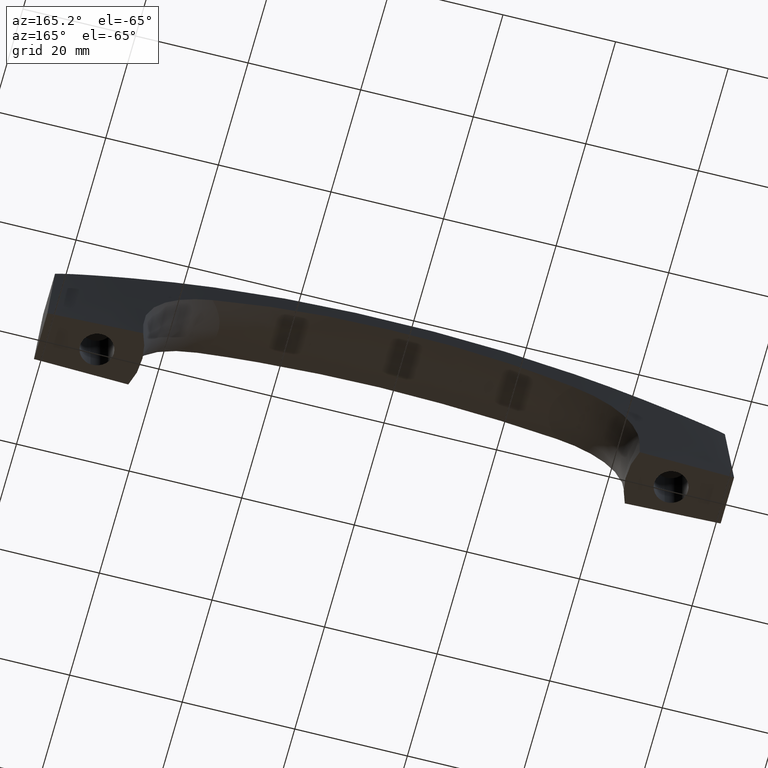
[diagram: clean part render]
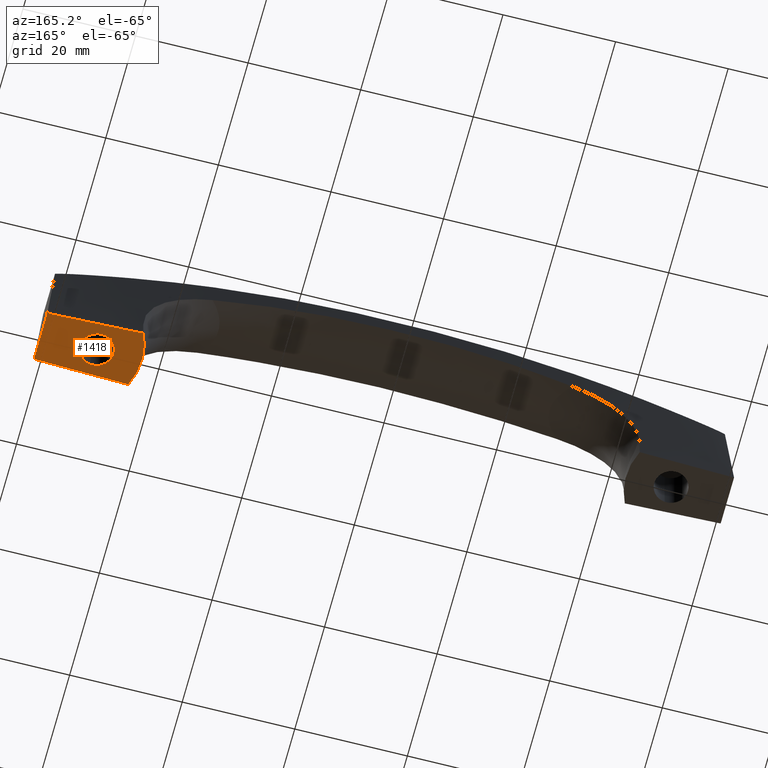
[diagram: same view with one face highlighted and labeled with its STEP entity id]
A machine part, auxiliary view. The second image highlights one B-rep face of the part: STEP entity #1418.
In plain terms, the highlighted face is a freeform B-spline surface patch.
Its self-contained STEP definition (entity closure, byte-faithful):
#271=CARTESIAN_POINT('',(51.354402704031180,-2.979028579083759,2.839428E-017));
#272=VERTEX_POINT('',#271);
#278=CARTESIAN_POINT('',(48.000300000000003,0.0,0.0));
#279=VERTEX_POINT('',#278);
#280=CARTESIAN_POINT('',(51.354402704031180,-2.979028579083760,2.839428E-017));
#281=CARTESIAN_POINT('',(51.177972359017275,-3.000000000000000,0.0));
#282=CARTESIAN_POINT('',(51.000300000000003,-3.0,0.0));
#283=CARTESIAN_POINT('',(48.000299999999982,-3.0,0.0));
#284=CARTESIAN_POINT('',(48.000300000000003,0.0,0.0));
#292=(BOUNDED_CURVE()B_SPLINE_CURVE(2,(#280,#281,#282,#283,#284),.UNSPECIFIED.,.F.,.U.)B_SPLINE_CURVE_WITH_KNOTS((3,2,3),(0.229562473508734,0.250000000000000,0.500000000000000),.UNSPECIFIED.)CURVE()GEOMETRIC_REPRESENTATION_ITEM()RATIONAL_B_SPLINE_CURVE((0.956026754174341,0.976055948325551,1.0,0.707106781186548,1.0))REPRESENTATION_ITEM(''));
#293=EDGE_CURVE('',#272,#279,#292,.T.);
#295=CARTESIAN_POINT('',(50.817154380951891,2.994404395238473,2.775558E-017));
#296=VERTEX_POINT('',#295);
#297=CARTESIAN_POINT('',(48.000300000000003,0.0,0.0));
#298=CARTESIAN_POINT('',(48.000299999999989,2.822118199879488,0.0));
#299=CARTESIAN_POINT('',(50.817154380951891,2.994404395238473,2.775558E-017));
#307=(BOUNDED_CURVE()B_SPLINE_CURVE(2,(#297,#298,#299),.UNSPECIFIED.,.F.,.U.)B_SPLINE_CURVE_WITH_KNOTS((3,3),(0.500000000000000,0.739332962190852),.UNSPECIFIED.)CURVE()GEOMETRIC_REPRESENTATION_ITEM()RATIONAL_B_SPLINE_CURVE((1.0,0.719603993343052,0.976072041563651))REPRESENTATION_ITEM(''));
#308=EDGE_CURVE('',#279,#296,#307,.T.);
#382=CARTESIAN_POINT('',(54.000300000000003,0.0,0.0));
#383=VERTEX_POINT('',#382);
#384=CARTESIAN_POINT('',(50.817154380951891,2.994404395238472,2.775558E-017));
#385=CARTESIAN_POINT('',(50.908641709659442,3.0,0.0));
#386=CARTESIAN_POINT('',(51.000300000000003,3.0,0.0));
#387=CARTESIAN_POINT('',(54.000300000000010,3.0,0.0));
#388=CARTESIAN_POINT('',(54.000300000000003,0.0,0.0));
#396=(BOUNDED_CURVE()B_SPLINE_CURVE(2,(#384,#385,#386,#387,#388),.UNSPECIFIED.,.F.,.U.)B_SPLINE_CURVE_WITH_KNOTS((3,2,3),(0.739332962190852,0.750000000000000,1.0),.UNSPECIFIED.)CURVE()GEOMETRIC_REPRESENTATION_ITEM()RATIONAL_B_SPLINE_CURVE((0.976072041563651,0.987502787843496,1.0,0.707106781186548,1.0))REPRESENTATION_ITEM(''));
#397=EDGE_CURVE('',#296,#383,#396,.T.);
#399=CARTESIAN_POINT('',(54.000300000000003,0.0,0.0));
#400=CARTESIAN_POINT('',(54.000300000000010,-2.664523577744385,0.0));
#401=CARTESIAN_POINT('',(51.354402704031180,-2.979028579083760,2.839428E-017));
#409=(BOUNDED_CURVE()B_SPLINE_CURVE(2,(#399,#400,#401),.UNSPECIFIED.,.F.,.U.)B_SPLINE_CURVE_WITH_KNOTS((3,3),(0.0,0.229562473508734),.UNSPECIFIED.)CURVE()GEOMETRIC_REPRESENTATION_ITEM()RATIONAL_B_SPLINE_CURVE((1.0,0.731050832860996,0.956026754174341))REPRESENTATION_ITEM(''));
#410=EDGE_CURVE('',#383,#272,#409,.T.);
#525=CARTESIAN_POINT('',(44.102548297613751,5.023843930014119,0.0));
#526=VERTEX_POINT('',#525);
#534=CARTESIAN_POINT('',(44.102548297613751,-5.023843930014130,0.0));
#535=VERTEX_POINT('',#534);
#536=CARTESIAN_POINT('',(44.102548297613843,-5.023843930014089,0.0));
#537=CARTESIAN_POINT('',(41.786565283648393,-4.336809E-015,0.0));
#538=CARTESIAN_POINT('',(44.102548297613829,5.023843930014082,0.0));
#546=(BOUNDED_CURVE()B_SPLINE_CURVE(2,(#536,#537,#538),.UNSPECIFIED.,.F.,.U.)CURVE()GEOMETRIC_REPRESENTATION_ITEM()QUASI_UNIFORM_CURVE()RATIONAL_B_SPLINE_CURVE((1.0,0.908145975198847,1.0))REPRESENTATION_ITEM(''));
#547=EDGE_CURVE('',#535,#526,#546,.T.);
#1333=CARTESIAN_POINT('',(61.000299999999001,-4.500000000000000,-1.554312E-012));
#1334=VERTEX_POINT('',#1333);
#1340=CARTESIAN_POINT('',(61.000300000000003,4.500000000000119,-4.440892E-013));
#1341=VERTEX_POINT('',#1340);
#1342=CARTESIAN_POINT('',(61.000299999999001,-4.500000000000000,-1.554312E-012));
#1343=CARTESIAN_POINT('',(61.000300000000003,4.500000000000119,-4.440892E-013));
#1344=QUASI_UNIFORM_CURVE('',1,(#1342,#1343),.UNSPECIFIED.,.F.,.U.);
#1345=EDGE_CURVE('',#1334,#1341,#1344,.T.);
#1387=CARTESIAN_POINT('',(42.101201322347833,-5.525725694609764,-3.367663E-016));
#1388=CARTESIAN_POINT('',(42.101201322347833,5.525725425109765,-3.367663E-016));
#1389=CARTESIAN_POINT('',(61.899401735370461,-5.525725694609764,-3.367663E-016));
#1390=CARTESIAN_POINT('',(61.899401735370461,5.525725425109765,-3.367663E-016));
#1391=B_SPLINE_SURFACE_WITH_KNOTS('',1,1,((#1387,#1389),(#1388,#1390)),.UNSPECIFIED.,.F.,.F.,.U.,(2,2),(2,2),(0.0,11.051451119719530),(0.0,19.798200413022631),.UNSPECIFIED.);
#1392=ORIENTED_EDGE('',*,*,#547,.T.);
#1393=CARTESIAN_POINT('',(61.000300000000003,4.500000000000119,-4.440892E-013));
#1394=CARTESIAN_POINT('',(57.418003454618500,4.580440600323540,-4.867277E-013));
#1395=CARTESIAN_POINT('',(52.043963182936587,4.701114871741352,1.155151E-013));
#1396=CARTESIAN_POINT('',(46.099960793854592,4.953844353278069,6.867327E-014));
#1397=CARTESIAN_POINT('',(44.102548297613751,5.023843930014119,0.0));
#1398=B_SPLINE_CURVE_WITH_KNOTS('',3,(#1393,#1394,#1395,#1396,#1397),.UNSPECIFIED.,.F.,.U.,(4,1,4),(0.0,0.096242615002708,0.144379920066499),.UNSPECIFIED.);
#1399=EDGE_CURVE('',#1341,#526,#1398,.T.);
#1400=ORIENTED_EDGE('',*,*,#1399,.F.);
#1401=ORIENTED_EDGE('',*,*,#1345,.F.);
#1402=CARTESIAN_POINT('',(61.000299999999001,-4.500000000000000,-1.554312E-012));
#1403=CARTESIAN_POINT('',(57.418003454618500,-4.580440600323500,-7.639177E-013));
#1404=CARTESIAN_POINT('',(52.043963182936587,-4.701114871741360,8.870168E-014));
#1405=CARTESIAN_POINT('',(46.099960793854592,-4.953844353278074,7.114332E-014));
#1406=CARTESIAN_POINT('',(44.102548297613751,-5.023843930014130,0.0));
#1407=B_SPLINE_CURVE_WITH_KNOTS('',3,(#1402,#1403,#1404,#1405,#1406),.UNSPECIFIED.,.F.,.U.,(4,1,4),(0.0,0.096242615002708,0.144379920066499),.UNSPECIFIED.);
#1408=EDGE_CURVE('',#1334,#535,#1407,.T.);
#1409=ORIENTED_EDGE('',*,*,#1408,.T.);
#1410=EDGE_LOOP('',(#1392,#1400,#1401,#1409));
#1411=FACE_OUTER_BOUND('',#1410,.T.);
#1412=ORIENTED_EDGE('',*,*,#308,.F.);
#1413=ORIENTED_EDGE('',*,*,#293,.F.);
#1414=ORIENTED_EDGE('',*,*,#410,.F.);
#1415=ORIENTED_EDGE('',*,*,#397,.F.);
#1416=EDGE_LOOP('',(#1412,#1413,#1414,#1415));
#1417=FACE_BOUND('',#1416,.T.);
#1418=ADVANCED_FACE('',(#1411,#1417),#1391,.T.);